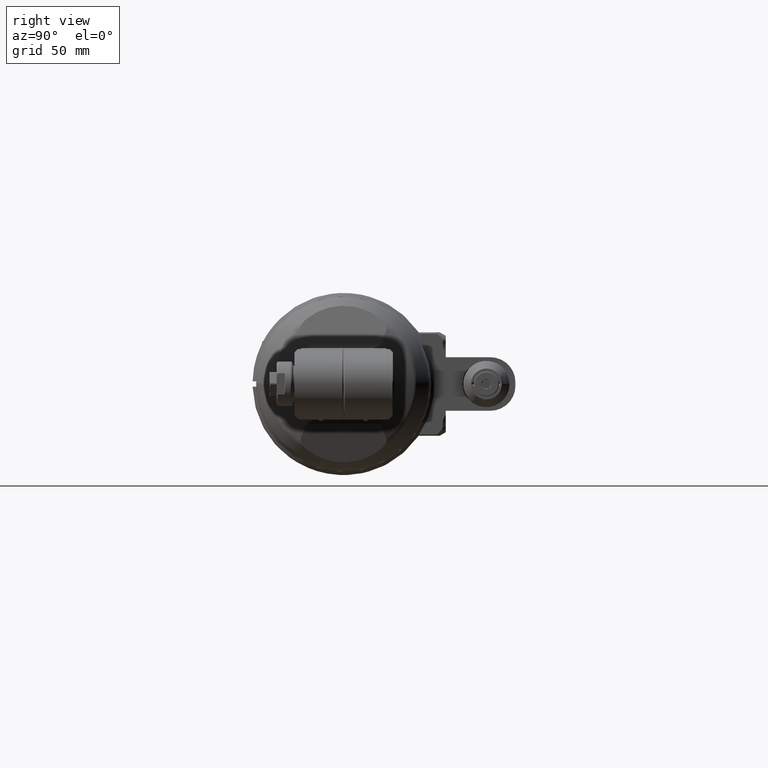
[diagram: clean part render]
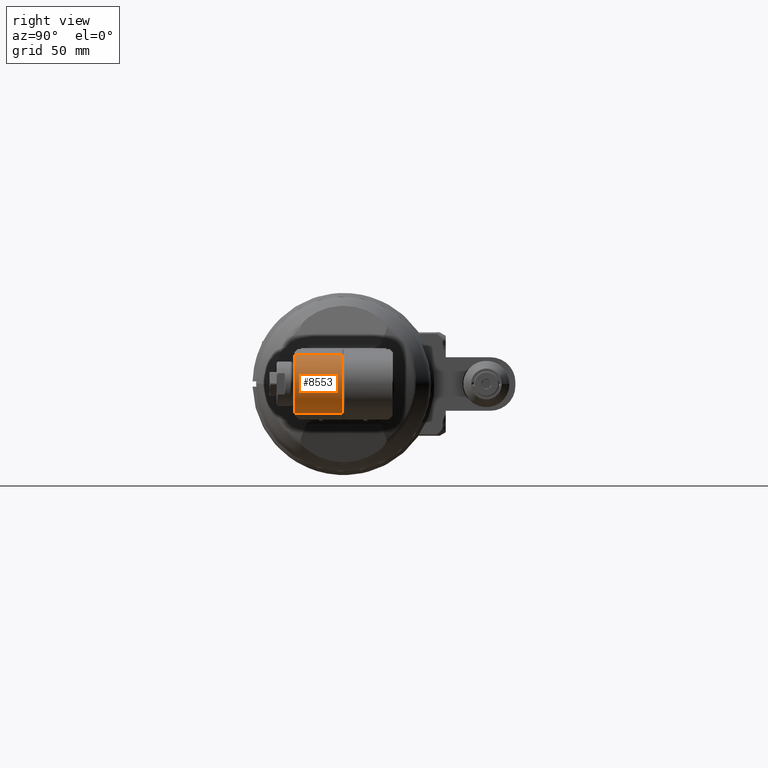
[diagram: same view with one face highlighted and labeled with its STEP entity id]
A machine part, right view. The second image highlights one B-rep face of the part: STEP entity #8553.
In plain terms, the highlighted cylindrical surface (edge-blend (fillet) strip) has radius 17 mm, axis along (-0, 1, -0.0017).
Its self-contained STEP definition (entity closure, byte-faithful):
#1490=FACE_OUTER_BOUND('',#2027,.T.);
#2027=EDGE_LOOP('',(#7502,#7503,#7504,#7505));
#2605=LINE('',#55957,#3154);
#2610=LINE('',#55976,#3159);
#3154=VECTOR('',#11463,26.83431457505);
#3159=VECTOR('',#11482,26.83431457505);
#3574=CIRCLE('',#9453,17.);
#3578=CIRCLE('',#9463,17.);
#4314=VERTEX_POINT('',#55929);
#4315=VERTEX_POINT('',#55931);
#4320=VERTEX_POINT('',#55955);
#4323=VERTEX_POINT('',#55970);
#5405=EDGE_CURVE('',#4314,#4315,#3574,.T.);
#5415=EDGE_CURVE('',#4314,#4320,#2605,.T.);
#5421=EDGE_CURVE('',#4323,#4320,#3578,.T.);
#5424=EDGE_CURVE('',#4323,#4315,#2610,.T.);
#7502=ORIENTED_EDGE('',*,*,#5421,.F.);
#7503=ORIENTED_EDGE('',*,*,#5424,.T.);
#7504=ORIENTED_EDGE('',*,*,#5405,.F.);
#7505=ORIENTED_EDGE('',*,*,#5415,.T.);
#8159=CYLINDRICAL_SURFACE('',#9465,17.);
#8553=ADVANCED_FACE('',(#1490),#8159,.T.);
#9453=AXIS2_PLACEMENT_3D('',#55932,#11449,#11450);
#9463=AXIS2_PLACEMENT_3D('',#55971,#11475,#11476);
#9465=AXIS2_PLACEMENT_3D('',#55975,#11480,#11481);
#11449=DIRECTION('center_axis',(0.,-1.,0.));
#11450=DIRECTION('ref_axis',(0.258819045102493,0.,-0.965925826289076));
#11463=DIRECTION('',(0.,1.,0.));
#11475=DIRECTION('center_axis',(0.,1.,0.));
#11476=DIRECTION('ref_axis',(0.258819045102493,0.,0.965925826289076));
#11480=DIRECTION('center_axis',(0.,1.,0.));
#11481=DIRECTION('ref_axis',(1.,0.,1.22464679914735E-16));
#11482=DIRECTION('',(0.,-1.,0.));
#55929=CARTESIAN_POINT('',(211.3999237667,-27.5,-16.42073904691));
#55931=CARTESIAN_POINT('',(211.3999237667,-27.5,16.42073904691));
#55932=CARTESIAN_POINT('Origin',(207.,-27.5,0.));
#55955=CARTESIAN_POINT('',(211.3999237667,-0.6656854249492,-16.42073904691));
#55957=CARTESIAN_POINT('',(211.3999237667,-27.5,-16.42073904691));
#55970=CARTESIAN_POINT('',(211.3999237667,-0.6656854249492,16.42073904691));
#55971=CARTESIAN_POINT('Origin',(207.,-0.6656854249492,0.));
#55975=CARTESIAN_POINT('Origin',(207.,-66.95199937934,0.));
#55976=CARTESIAN_POINT('',(211.3999237667,-0.6656854249492,16.42073904691));